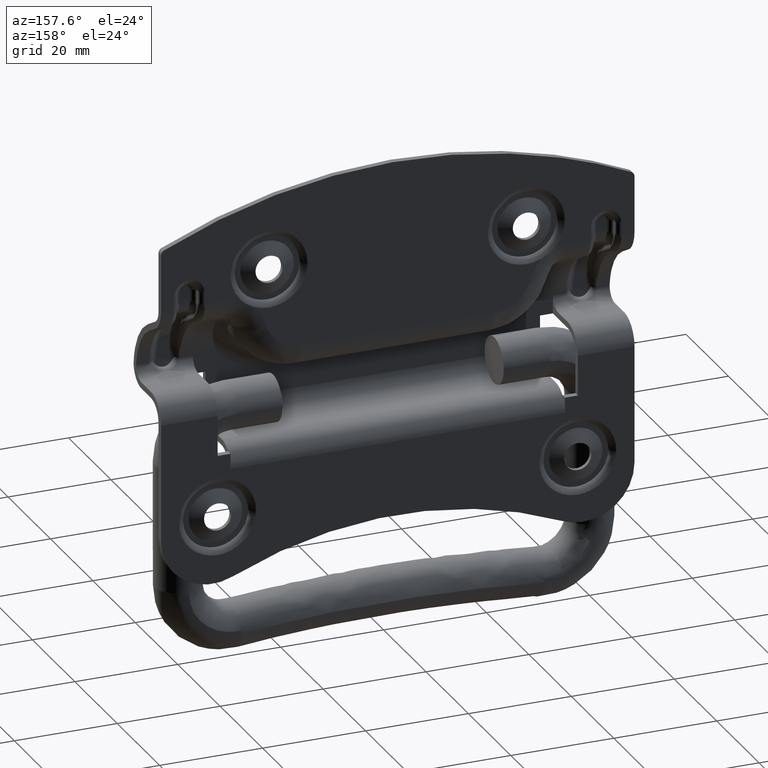
[diagram: clean part render]
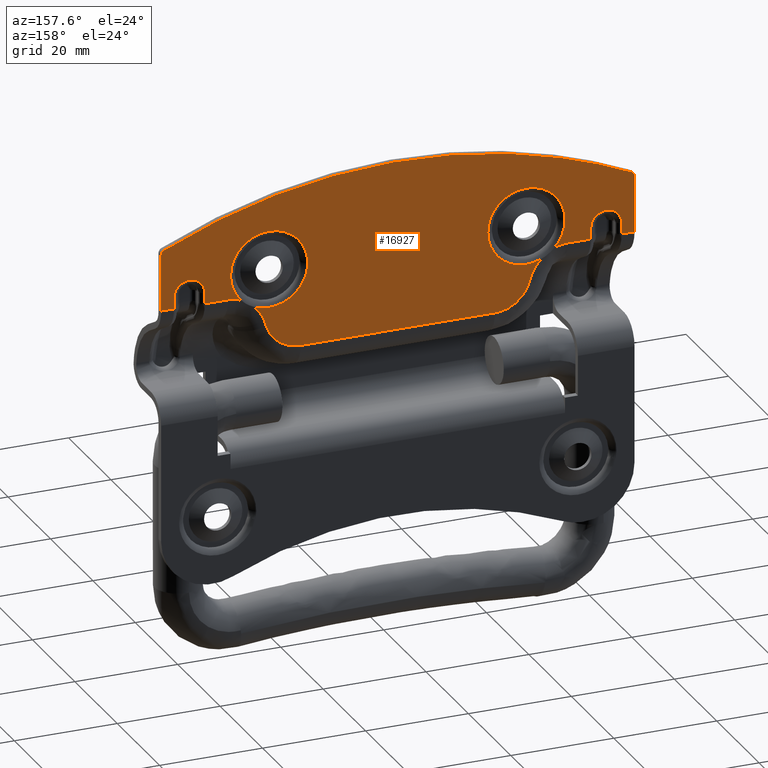
[diagram: same view with one face highlighted and labeled with its STEP entity id]
A machine part, auxiliary view. The second image highlights one B-rep face of the part: STEP entity #16927.
In plain terms, the highlighted face is a freeform B-spline surface patch.
Its self-contained STEP definition (entity closure, byte-faithful):
#4480=CARTESIAN_POINT('',(-17.599855428868469,6.699999999999859,29.719778737394659));
#4481=VERTEX_POINT('',#4480);
#4492=CARTESIAN_POINT('',(-27.859157721845101,6.699999999999720,21.566370566462801));
#4493=VERTEX_POINT('',#4492);
#4494=CARTESIAN_POINT('',(-27.859157721845101,6.699999999999720,21.566370566462801));
#4495=CARTESIAN_POINT('',(-27.360322011655089,6.699999999999748,21.360631809573341));
#4496=CARTESIAN_POINT('',(-26.157671341375309,6.699999999999797,21.010523444015199));
#4497=CARTESIAN_POINT('',(-24.272166708710881,6.699999999999889,20.946008092928110));
#4498=CARTESIAN_POINT('',(-22.643541879350689,6.699999999999905,21.330209056287480));
#4499=CARTESIAN_POINT('',(-21.391432594486190,6.700000000000029,21.893185835677158));
#4500=CARTESIAN_POINT('',(-20.305661637399119,6.699999999999835,22.591983571141569));
#4501=CARTESIAN_POINT('',(-19.128452021655619,6.700000000000098,23.716992021070620));
#4502=CARTESIAN_POINT('',(-18.296017919010321,6.699999999999943,25.023783359889428));
#4503=CARTESIAN_POINT('',(-17.757431780009529,6.699999999999949,26.421282093426189));
#4504=CARTESIAN_POINT('',(-17.456184346751701,6.699999999999969,27.892508938613840));
#4505=CARTESIAN_POINT('',(-17.491627361475011,6.699999999999839,29.064504485231851));
#4506=CARTESIAN_POINT('',(-17.599855428868469,6.699999999999859,29.719778737394659));
#4507=B_SPLINE_CURVE_WITH_KNOTS('',3,(#4494,#4495,#4496,#4497,#4498,#4499,#4500,#4501,#4502,#4503,#4504,#4505,#4506),.UNSPECIFIED.,.F.,.U.,(4,1,1,1,1,1,1,1,1,1,4),(0.000000144403227,1.618828214181859,3.735874904985225,5.603850837599225,6.600082343000436,7.845364331173047,9.464215657044326,11.456695585231399,12.452932399126800,13.947328080823439,15.939751955367260),.UNSPECIFIED.);
#4508=EDGE_CURVE('',#4493,#4481,#4507,.T.);
#4510=CARTESIAN_POINT('',(-30.442221614936599,6.700000000000000,23.339358189729001));
#4511=VERTEX_POINT('',#4510);
#4520=CARTESIAN_POINT('',(-30.227261241813601,6.700000000000000,33.878265511280880));
#4521=VERTEX_POINT('',#4520);
#4522=CARTESIAN_POINT('',(-30.227261241813601,6.700000000000000,33.878265511280880));
#4523=CARTESIAN_POINT('',(-30.576537936198591,6.700000000000004,33.538864588067831));
#4524=CARTESIAN_POINT('',(-31.208609928645529,6.700000000000019,32.791686823680372));
#4525=CARTESIAN_POINT('',(-32.026242869040551,6.700000000000020,31.321600236154719));
#4526=CARTESIAN_POINT('',(-32.485313480000151,6.700000000000057,29.662645540777469));
#4527=CARTESIAN_POINT('',(-32.536354236661090,6.700000000000039,27.735258594556331));
#4528=CARTESIAN_POINT('',(-32.165765403128503,6.700000000000036,26.054337421765549));
#4529=CARTESIAN_POINT('',(-31.413672857445210,6.699999999999998,24.515533807658912));
#4530=CARTESIAN_POINT('',(-30.798338427640878,6.700000000000002,23.714790264506210));
#4531=CARTESIAN_POINT('',(-30.442221614936599,6.700000000000000,23.339358189729001));
#4532=B_SPLINE_CURVE_WITH_KNOTS('',3,(#4522,#4523,#4524,#4525,#4526,#4527,#4528,#4529,#4530,#4531),.UNSPECIFIED.,.F.,.U.,(4,1,1,1,1,1,1,4),(0.000000170349656,1.461057590551784,2.922174182969343,5.022497032051713,6.574848624951004,8.675201047354914,10.136311972386819,11.688694012835169),.UNSPECIFIED.);
#4533=EDGE_CURVE('',#4521,#4511,#4532,.T.);
#4535=CARTESIAN_POINT('',(-19.686393561458079,6.699999999999859,33.792975213646777));
#4536=VERTEX_POINT('',#4535);
#4537=CARTESIAN_POINT('',(-19.686393561458079,6.699999999999859,33.792975213646777));
#4538=CARTESIAN_POINT('',(-20.223211818278511,6.699999999999847,34.332420803422217));
#4539=CARTESIAN_POINT('',(-21.239861120630302,6.699999999999903,35.080927160409082));
#4540=CARTESIAN_POINT('',(-22.798577886276519,6.699999999999881,35.713428094965948));
#4541=CARTESIAN_POINT('',(-24.234915229605960,6.699999999999941,36.008964288599898));
#4542=CARTESIAN_POINT('',(-25.612861836513659,6.699999999999925,36.020135690317780));
#4543=CARTESIAN_POINT('',(-26.964553134051851,6.699999999999962,35.773154837603748));
#4544=CARTESIAN_POINT('',(-28.545985466058429,6.699999999999958,35.205169171294123));
#4545=CARTESIAN_POINT('',(-29.616374572467631,6.700000000000017,34.472722554203372));
#4546=CARTESIAN_POINT('',(-30.227261241813601,6.700000000000000,33.878265511280880));
#4547=B_SPLINE_CURVE_WITH_KNOTS('',3,(#4537,#4538,#4539,#4540,#4541,#4542,#4543,#4544,#4545,#4546),.UNSPECIFIED.,.F.,.U.,(4,1,1,1,1,1,1,4),(0.000000170372232,2.282972505763624,3.744102239475631,5.022565514238776,6.666298828322905,7.853428092450624,9.131924479666989,11.688853387539909),.UNSPECIFIED.);
#4548=EDGE_CURVE('',#4536,#4521,#4547,.T.);
#4590=CARTESIAN_POINT('',(-17.599855428868469,6.699999999999859,29.719778737394659));
#4591=CARTESIAN_POINT('',(-17.694291230821669,6.699999999999889,30.293406727546792));
#4592=CARTESIAN_POINT('',(-17.963704653203699,6.699999999999946,31.230893748027800));
#4593=CARTESIAN_POINT('',(-18.672623134032548,6.699999999999910,32.614784581168983));
#4594=CARTESIAN_POINT('',(-19.276027804433848,6.699999999999918,33.381190892038497));
#4595=CARTESIAN_POINT('',(-19.686393561458079,6.699999999999859,33.792975213646777));
#4596=B_SPLINE_CURVE_WITH_KNOTS('',3,(#4590,#4591,#4592,#4593,#4594,#4595),.UNSPECIFIED.,.F.,.U.,(4,1,1,4),(0.000000023372207,1.744019462370837,2.906675351270086,4.650694790267514),.UNSPECIFIED.);
#4597=EDGE_CURVE('',#4481,#4536,#4596,.T.);
#4902=CARTESIAN_POINT('',(32.400144577657727,6.699999999999836,29.719778738156322));
#4903=VERTEX_POINT('',#4902);
#4914=CARTESIAN_POINT('',(30.442243711970399,6.699999999999720,23.339381492541900));
#4915=VERTEX_POINT('',#4914);
#4916=CARTESIAN_POINT('',(30.442243711970399,6.699999999999720,23.339381492541900));
#4917=CARTESIAN_POINT('',(31.012729285083338,6.699999999999767,23.940334725759531));
#4918=CARTESIAN_POINT('',(31.726576211102451,6.699999999999779,25.000514157920751));
#4919=CARTESIAN_POINT('',(32.246215813741060,6.699999999999839,26.465979307134241));
#4920=CARTESIAN_POINT('',(32.535754669270318,6.699999999999837,27.916807352750340));
#4921=CARTESIAN_POINT('',(32.523558819182227,6.699999999999841,28.973353938789479));
#4922=CARTESIAN_POINT('',(32.400144577657727,6.699999999999836,29.719778738156322));
#4923=B_SPLINE_CURVE_WITH_KNOTS('',3,(#4916,#4917,#4918,#4919,#4920,#4921,#4922),.UNSPECIFIED.,.F.,.U.,(4,1,1,1,4),(0.000000057421215,2.485659334540035,3.782491075978940,4.647082522637892,6.916604693671566),.UNSPECIFIED.);
#4924=EDGE_CURVE('',#4915,#4903,#4923,.T.);
#4926=CARTESIAN_POINT('',(27.859068966373449,6.700000000000000,21.566333967840649));
#4927=VERTEX_POINT('',#4926);
#4936=CARTESIAN_POINT('',(17.646709662147479,6.699999999999999,29.976184679247400));
#4937=VERTEX_POINT('',#4936);
#4938=CARTESIAN_POINT('',(17.646709662147479,6.699999999999999,29.976184679247400));
#4939=CARTESIAN_POINT('',(17.513655399809810,6.700000000000011,29.314415719801140));
#4940=CARTESIAN_POINT('',(17.430717735093548,6.700000000000038,27.997273832698230));
#4941=CARTESIAN_POINT('',(17.807904082857618,6.700000000000072,26.121061805612619));
#4942=CARTESIAN_POINT('',(18.536675211569420,6.700000000000066,24.585904518885339));
#4943=CARTESIAN_POINT('',(19.439005625404480,6.700000000000070,23.409062771299428));
#4944=CARTESIAN_POINT('',(20.346086638651570,6.700000000000074,22.581635327030341));
#4945=CARTESIAN_POINT('',(21.331404104708920,6.700000000000041,21.925256208034750));
#4946=CARTESIAN_POINT('',(22.367690411477710,6.700000000000165,21.442702215952551));
#4947=CARTESIAN_POINT('',(23.670585659619679,6.699999999999934,21.074372117776829));
#4948=CARTESIAN_POINT('',(24.938701854076371,6.700000000000073,20.960163857052859));
#4949=CARTESIAN_POINT('',(26.413032717186571,6.700000000000076,21.089287707311929));
#4950=CARTESIAN_POINT('',(27.313074084678210,6.699999999999968,21.341069250886079));
#4951=CARTESIAN_POINT('',(27.859068966373449,6.700000000000000,21.566333967840649));
#4952=B_SPLINE_CURVE_WITH_KNOTS('',3,(#4938,#4939,#4940,#4941,#4942,#4943,#4944,#4945,#4946,#4947,#4948,#4949,#4950,#4951),.UNSPECIFIED.,.F.,.U.,(4,1,1,1,1,1,1,1,1,1,1,4),(0.000000121347497,2.024998801407255,3.923516485444116,5.695463858836543,7.087708065103147,8.353265406008379,9.365762727162242,10.631434803203421,11.770544444445690,13.415912213167701,14.428427323736861,16.200329934772991),.UNSPECIFIED.);
#4953=EDGE_CURVE('',#4937,#4927,#4952,.T.);
#4955=CARTESIAN_POINT('',(30.313606431949552,6.699999999999859,33.792975209025407));
#4956=VERTEX_POINT('',#4955);
#4957=CARTESIAN_POINT('',(30.313606431949552,6.699999999999859,33.792975209025407));
#4958=CARTESIAN_POINT('',(30.015890429225060,6.699999999999867,34.091883179872973));
#4959=CARTESIAN_POINT('',(29.305267548475030,6.699999999999865,34.694050501164533));
#4960=CARTESIAN_POINT('',(28.162761844590861,6.699999999999878,35.344166886596142));
#4961=CARTESIAN_POINT('',(26.686999519428682,6.699999999999876,35.866592633866397));
#4962=CARTESIAN_POINT('',(24.998254307521851,6.699999999999958,36.086130568375999));
#4963=CARTESIAN_POINT('',(23.185611825129509,6.699999999999864,35.844644032161682));
#4964=CARTESIAN_POINT('',(21.518865870258491,6.699999999999890,35.216937082350768));
#4965=CARTESIAN_POINT('',(20.209652337255640,6.700000000000175,34.344210435630167));
#4966=CARTESIAN_POINT('',(19.087519934210210,6.699999999999831,33.191175804624081));
#4967=CARTESIAN_POINT('',(18.183392103077111,6.699999999999934,31.804675313348611));
#4968=CARTESIAN_POINT('',(17.779356248158880,6.700000000000209,30.638035915425888));
#4969=CARTESIAN_POINT('',(17.646709662147479,6.699999999999999,29.976184679247400));
#4970=B_SPLINE_CURVE_WITH_KNOTS('',3,(#4957,#4958,#4959,#4960,#4961,#4962,#4963,#4964,#4965,#4966,#4967,#4968,#4969),.UNSPECIFIED.,.F.,.U.,(4,1,1,1,1,1,1,1,1,1,4),(0.000000121358731,1.265650540931576,2.784415849806873,3.923522161164160,5.948593406849312,7.847070779384904,9.365776275358476,11.264294571443820,12.529968621919350,14.175342593331390,16.200353370000482),.UNSPECIFIED.);
#4971=EDGE_CURVE('',#4956,#4937,#4970,.T.);
#5013=CARTESIAN_POINT('',(32.400144577657727,6.699999999999836,29.719778738156322));
#5014=CARTESIAN_POINT('',(32.278372578273348,6.699999999999927,30.460783787019679));
#5015=CARTESIAN_POINT('',(31.794144931458838,6.700000000000046,31.951837520804130));
#5016=CARTESIAN_POINT('',(30.878096061243770,6.699999999999930,33.226967781208700));
#5017=CARTESIAN_POINT('',(30.313606431949552,6.699999999999859,33.792975209025407));
#5018=B_SPLINE_CURVE_WITH_KNOTS('',3,(#5013,#5014,#5015,#5016,#5017),.UNSPECIFIED.,.F.,.U.,(4,1,4),(0.000000023375017,2.252702822897335,4.650694792973183),.UNSPECIFIED.);
#5019=EDGE_CURVE('',#4903,#4956,#5018,.T.);
#5633=CARTESIAN_POINT('',(45.412847142036100,6.700000000000000,35.688200327905349));
#5634=VERTEX_POINT('',#5633);
#5640=CARTESIAN_POINT('',(-45.413430709133799,6.700000000000000,35.688043712758301));
#5641=VERTEX_POINT('',#5640);
#5642=CARTESIAN_POINT('',(45.412847142036100,6.700000000000000,35.688200327905349));
#5643=CARTESIAN_POINT('',(40.194306759742332,6.699999999999974,38.054122291389298));
#5644=CARTESIAN_POINT('',(32.720704395817677,6.700000000000030,40.759885919085377));
#5645=CARTESIAN_POINT('',(21.108965034063878,6.699999999999986,43.593907695625347));
#5646=CARTESIAN_POINT('',(12.423074920043010,6.699999999999981,44.947574044855301));
#5647=CARTESIAN_POINT('',(1.954435342727233,6.700000000000036,45.627235232019181));
#5648=CARTESIAN_POINT('',(-7.199274337816347,6.699999999999986,45.414132537162359));
#5649=CARTESIAN_POINT('',(-17.502382810161741,6.699999999999951,44.244369056944947));
#5650=CARTESIAN_POINT('',(-30.061606942080470,6.700000000000070,41.683682362392211));
#5651=CARTESIAN_POINT('',(-39.639756778791117,6.699999999999950,38.305731042738053));
#5652=CARTESIAN_POINT('',(-45.413430709133799,6.700000000000000,35.688043712758301));
#5653=B_SPLINE_CURVE_WITH_KNOTS('',3,(#5642,#5643,#5644,#5645,#5646,#5647,#5648,#5649,#5650,#5651,#5652),.UNSPECIFIED.,.F.,.U.,(4,1,1,1,1,1,1,1,4),(0.000000014710807,17.189339467061160,23.772504426845771,35.841635796459379,43.521979101027192,55.225332009972092,63.271424679075778,74.609089818505126,93.627091931283061),.UNSPECIFIED.);
#5654=EDGE_CURVE('',#5634,#5641,#5653,.T.);
#5696=CARTESIAN_POINT('',(46.0,6.700000000000000,34.777400000000000));
#5697=VERTEX_POINT('',#5696);
#5703=CARTESIAN_POINT('',(46.0,6.700000000000000,34.777400000000000));
#5704=CARTESIAN_POINT('',(46.000136862794953,6.700000000000006,34.908646347947638));
#5705=CARTESIAN_POINT('',(45.954713477499432,6.699999999999998,35.135190445052253));
#5706=CARTESIAN_POINT('',(45.757501502694637,6.700000000000006,35.466658394656868));
#5707=CARTESIAN_POINT('',(45.554255199775703,6.700000000000005,35.624389287485023));
#5708=CARTESIAN_POINT('',(45.412847142036100,6.700000000000000,35.688200327905349));
#5709=B_SPLINE_CURVE_WITH_KNOTS('',3,(#5703,#5704,#5705,#5706,#5707,#5708),.UNSPECIFIED.,.F.,.U.,(4,1,1,4),(0.000000285971938,0.393708041685748,0.680001799287294,1.145279577877938),.UNSPECIFIED.);
#5710=EDGE_CURVE('',#5697,#5634,#5709,.T.);
#5740=CARTESIAN_POINT('',(-46.000500000000002,6.700000000000000,34.777400000000000));
#5741=VERTEX_POINT('',#5740);
#5742=CARTESIAN_POINT('',(-45.413430709133799,6.700000000000000,35.688043712758301));
#5743=CARTESIAN_POINT('',(-45.532998655047372,6.700000000000000,35.633982889480748));
#5744=CARTESIAN_POINT('',(-45.750260266463933,6.699999999999998,35.477876266394667));
#5745=CARTESIAN_POINT('',(-45.955212033576082,6.700000000000017,35.147135777531403));
#5746=CARTESIAN_POINT('',(-46.000571281730771,6.699999999999977,34.896677366694611));
#5747=CARTESIAN_POINT('',(-46.000500000000002,6.700000000000000,34.777400000000000));
#5748=B_SPLINE_CURVE_WITH_KNOTS('',3,(#5742,#5743,#5744,#5745,#5746,#5747),.UNSPECIFIED.,.F.,.U.,(4,1,1,4),(0.000000285892713,0.393642477896029,0.787243907968191,1.145088858863609),.UNSPECIFIED.);
#5749=EDGE_CURVE('',#5641,#5741,#5748,.T.);
#9154=CARTESIAN_POINT('',(43.499749999999999,6.700000000000000,23.855556603696702));
#9155=VERTEX_POINT('',#9154);
#9373=CARTESIAN_POINT('',(37.499749999999999,6.700000000000000,23.855556603696702));
#9374=VERTEX_POINT('',#9373);
#9670=CARTESIAN_POINT('',(-37.500749999999996,6.700000000000000,23.855556603696702));
#9671=VERTEX_POINT('',#9670);
#10107=CARTESIAN_POINT('',(-43.500749999999996,6.700000000000000,23.855556603696702));
#10108=VERTEX_POINT('',#10107);
#10462=CARTESIAN_POINT('',(-37.500749999999996,6.700000000000000,26.0));
#10463=VERTEX_POINT('',#10462);
#10464=CARTESIAN_POINT('',(-37.500749999999996,6.700000000000000,23.855556603696702));
#10465=CARTESIAN_POINT('',(-37.500749999999996,6.700000000000000,26.0));
#10466=QUASI_UNIFORM_CURVE('',1,(#10464,#10465),.UNSPECIFIED.,.F.,.U.);
#10467=EDGE_CURVE('',#9671,#10463,#10466,.T.);
#10515=CARTESIAN_POINT('',(-43.500749999999996,6.700000000000000,26.0));
#10516=VERTEX_POINT('',#10515);
#10527=CARTESIAN_POINT('',(-40.500753221776833,6.699999999999999,28.999999999998270));
#10528=VERTEX_POINT('',#10527);
#10529=CARTESIAN_POINT('',(-40.500753221776833,6.699999999999999,28.999999999998270));
#10530=CARTESIAN_POINT('',(-40.746189353065880,6.699999999999998,29.000064056054178));
#10531=CARTESIAN_POINT('',(-41.187931288121689,6.700000000000001,28.945449107539229));
#10532=CARTESIAN_POINT('',(-41.907859607631622,6.700000000000002,28.688024696617560));
#10533=CARTESIAN_POINT('',(-42.625364544750582,6.699999999999992,28.195946224019551));
#10534=CARTESIAN_POINT('',(-43.144609892632573,6.700000000000022,27.495665638531730));
#10535=CARTESIAN_POINT('',(-43.437323205624210,6.699999999999950,26.736243432026310));
#10536=CARTESIAN_POINT('',(-43.500852187186588,6.700000000000070,26.269990095391599));
#10537=CARTESIAN_POINT('',(-43.500749999999996,6.700000000000000,26.0));
#10538=B_SPLINE_CURVE_WITH_KNOTS('',3,(#10529,#10530,#10531,#10532,#10533,#10534,#10535,#10536,#10537),.UNSPECIFIED.,.F.,.U.,(4,1,1,1,1,1,4),(0.000000211843044,0.736311563974538,1.325394493121019,2.282645086977906,3.313480242705597,3.902560987525169,4.712505417121879),.UNSPECIFIED.);
#10539=EDGE_CURVE('',#10528,#10516,#10538,.T.);
#10541=CARTESIAN_POINT('',(-37.500749999999996,6.700000000000000,26.0));
#10542=CARTESIAN_POINT('',(-37.500612580911167,6.699999999999992,26.294543237178189));
#10543=CARTESIAN_POINT('',(-37.573659160025471,6.700000000000017,26.785329995892599));
#10544=CARTESIAN_POINT('',(-37.866226006825350,6.699999999999986,27.491684473068162));
#10545=CARTESIAN_POINT('',(-38.344887289882202,6.700000000000009,28.154257261139080));
#10546=CARTESIAN_POINT('',(-39.005063105399230,6.699999999999981,28.643869681004059));
#10547=CARTESIAN_POINT('',(-39.764506480613328,6.700000000000038,28.936589076205269));
#10548=CARTESIAN_POINT('',(-40.230770166445033,6.699999999999927,29.000081305287200));
#10549=CARTESIAN_POINT('',(-40.500753221776833,6.699999999999999,28.999999999998270));
#10550=B_SPLINE_CURVE_WITH_KNOTS('',3,(#10541,#10542,#10543,#10544,#10545,#10546,#10547,#10548,#10549),.UNSPECIFIED.,.F.,.U.,(4,1,1,1,1,1,4),(0.000000207430602,0.883595123887533,1.472672153806683,2.282646837669791,3.313482796865293,3.902563997235837,4.712509048905859),.UNSPECIFIED.);
#10551=EDGE_CURVE('',#10463,#10528,#10550,.T.);
#10602=CARTESIAN_POINT('',(-43.500749999999996,6.700000000000000,26.0));
#10603=CARTESIAN_POINT('',(-43.500749999999996,6.700000000000000,23.855556603696702));
#10604=QUASI_UNIFORM_CURVE('',1,(#10602,#10603),.UNSPECIFIED.,.F.,.U.);
#10605=EDGE_CURVE('',#10516,#10108,#10604,.T.);
#10633=CARTESIAN_POINT('',(37.499749999999999,6.700000000000000,26.0));
#10634=VERTEX_POINT('',#10633);
#10635=CARTESIAN_POINT('',(37.499749999999999,6.700000000000000,26.0));
#10636=CARTESIAN_POINT('',(37.499749999999999,6.700000000000000,23.855556603696702));
#10637=QUASI_UNIFORM_CURVE('',1,(#10635,#10636),.UNSPECIFIED.,.F.,.U.);
#10638=EDGE_CURVE('',#10634,#9374,#10637,.T.);
#10676=CARTESIAN_POINT('',(43.499749999999999,6.700000000000000,26.0));
#10677=VERTEX_POINT('',#10676);
#10714=CARTESIAN_POINT('',(40.499746778223177,6.700000000000001,28.999999999998270));
#10715=VERTEX_POINT('',#10714);
#10716=CARTESIAN_POINT('',(40.499746778223177,6.700000000000001,28.999999999998270));
#10717=CARTESIAN_POINT('',(40.205217623385863,6.700000000000009,29.000101188575869));
#10718=CARTESIAN_POINT('',(39.591672447961741,6.699999999999987,28.908959384915580));
#10719=CARTESIAN_POINT('',(38.720326145524567,6.700000000000015,28.483953049738531));
#10720=CARTESIAN_POINT('',(38.104035220846768,6.699999999999993,27.867398508079042));
#10721=CARTESIAN_POINT('',(37.629888612856242,6.700000000000013,27.030465073744988));
#10722=CARTESIAN_POINT('',(37.499215861606473,6.700000000000022,26.417349437127729));
#10723=CARTESIAN_POINT('',(37.499749999999999,6.700000000000000,26.0));
#10724=B_SPLINE_CURVE_WITH_KNOTS('',3,(#10716,#10717,#10718,#10719,#10720,#10721,#10722,#10723),.UNSPECIFIED.,.F.,.U.,(4,1,1,1,1,4),(0.000000211838501,0.883594447142713,1.840828444091986,2.871678888009475,3.460742142525902,4.712505417121858),.UNSPECIFIED.);
#10725=EDGE_CURVE('',#10715,#10634,#10724,.T.);
#10727=CARTESIAN_POINT('',(43.499749999999999,6.700000000000000,26.0));
#10728=CARTESIAN_POINT('',(43.500198244091543,6.700000000000005,26.392794009980790));
#10729=CARTESIAN_POINT('',(43.387242255922622,6.699999999999993,26.956921126069791));
#10730=CARTESIAN_POINT('',(42.990123734984628,6.700000000000006,27.722264927275539));
#10731=CARTESIAN_POINT('',(42.455518708282362,6.699999999999984,28.342415760788640));
#10732=CARTESIAN_POINT('',(41.579498645101751,6.700000000000022,28.867328944938610));
#10733=CARTESIAN_POINT('',(40.867946349466933,6.699999999999989,29.000315880530142));
#10734=CARTESIAN_POINT('',(40.499746778223177,6.700000000000001,28.999999999998270));
#10735=B_SPLINE_CURVE_WITH_KNOTS('',3,(#10727,#10728,#10729,#10730,#10731,#10732,#10733,#10734),.UNSPECIFIED.,.F.,.U.,(4,1,1,1,1,4),(0.000000207422199,1.178128781644729,1.693580311910375,2.577104465568914,3.608018890868530,4.712509048905936),.UNSPECIFIED.);
#10736=EDGE_CURVE('',#10677,#10715,#10735,.T.);
#10755=CARTESIAN_POINT('',(43.499749999999999,6.700000000000000,23.855556603696702));
#10756=CARTESIAN_POINT('',(43.499749999999999,6.700000000000000,26.0));
#10757=QUASI_UNIFORM_CURVE('',1,(#10755,#10756),.UNSPECIFIED.,.F.,.U.);
#10758=EDGE_CURVE('',#9155,#10677,#10757,.T.);
#11999=CARTESIAN_POINT('',(-46.000500000000002,6.700000000000000,23.855556603696702));
#12000=VERTEX_POINT('',#11999);
#12001=CARTESIAN_POINT('',(-43.500749999999996,6.700000000000000,23.855556603696702));
#12002=CARTESIAN_POINT('',(-46.000500000000002,6.700000000000000,23.855556603696702));
#12003=QUASI_UNIFORM_CURVE('',1,(#12001,#12002),.UNSPECIFIED.,.F.,.U.);
#12004=EDGE_CURVE('',#10108,#12000,#12003,.T.);
#12050=CARTESIAN_POINT('',(46.0,6.700000000000000,23.855556603696702));
#12051=VERTEX_POINT('',#12050);
#12052=CARTESIAN_POINT('',(46.0,6.700000000000000,23.855556603696702));
#12053=CARTESIAN_POINT('',(43.499749999999999,6.700000000000000,23.855556603696702));
#12054=QUASI_UNIFORM_CURVE('',1,(#12052,#12053),.UNSPECIFIED.,.F.,.U.);
#12055=EDGE_CURVE('',#12051,#9155,#12054,.T.);
#12087=CARTESIAN_POINT('',(-18.875717261655250,6.700000000000000,12.500000000000000));
#12088=VERTEX_POINT('',#12087);
#12119=CARTESIAN_POINT('',(-25.566193525630901,6.700000000000000,17.441474469145749));
#12120=VERTEX_POINT('',#12119);
#12134=CARTESIAN_POINT('',(-18.875717261655250,6.700000000000000,12.500000000000000));
#12135=CARTESIAN_POINT('',(-19.501957548395929,6.700000000000006,12.499804966210050));
#12136=CARTESIAN_POINT('',(-20.452745029526159,6.700000000000002,12.628491198692339));
#12137=CARTESIAN_POINT('',(-21.812681862523171,6.699999999999988,13.106465405317421));
#12138=CARTESIAN_POINT('',(-23.032586952328408,6.700000000000023,13.791712725650971));
#12139=CARTESIAN_POINT('',(-24.136664079643989,6.700000000000000,14.800955464989951));
#12140=CARTESIAN_POINT('',(-25.025279735669098,6.699999999999990,16.054914715290469));
#12141=CARTESIAN_POINT('',(-25.409413444607271,6.699999999999995,16.931588307321320));
#12142=CARTESIAN_POINT('',(-25.566193525630901,6.700000000000000,17.441474469145749));
#12143=B_SPLINE_CURVE_WITH_KNOTS('',3,(#12134,#12135,#12136,#12137,#12138,#12139,#12140,#12141,#12142),.UNSPECIFIED.,.F.,.U.,(4,1,1,1,1,1,4),(0.000000104900050,1.878647072288070,2.852769895313346,4.313948543079624,6.053425047975685,7.305871002398871,8.906197329415004),.UNSPECIFIED.);
#12144=EDGE_CURVE('',#12088,#12120,#12143,.T.);
#12165=CARTESIAN_POINT('',(-25.707338826518900,6.700000000000000,17.900215092571901));
#12166=VERTEX_POINT('',#12165);
#12179=CARTESIAN_POINT('',(-25.566193525630901,6.700000000000000,17.441474469145749));
#12180=CARTESIAN_POINT('',(-25.707338826518900,6.700000000000000,17.900215092571901));
#12181=QUASI_UNIFORM_CURVE('',1,(#12179,#12180),.UNSPECIFIED.,.F.,.U.);
#12182=EDGE_CURVE('',#12120,#12166,#12181,.T.);
#12207=CARTESIAN_POINT('',(18.875617259092451,6.700000000000000,12.500000000000000));
#12208=VERTEX_POINT('',#12207);
#12230=CARTESIAN_POINT('',(18.875617259092451,6.700000000000000,12.500000000000000));
#12231=CARTESIAN_POINT('',(-18.875717261655250,6.700000000000000,12.500000000000000));
#12232=QUASI_UNIFORM_CURVE('',1,(#12230,#12231),.UNSPECIFIED.,.F.,.U.);
#12233=EDGE_CURVE('',#12208,#12088,#12232,.T.);
#12288=CARTESIAN_POINT('',(-25.980507588356101,6.700000000000000,18.669709580631501));
#12289=VERTEX_POINT('',#12288);
#12303=CARTESIAN_POINT('',(-25.707338826518900,6.700000000000000,17.900215092571901));
#12304=CARTESIAN_POINT('',(-25.980507588356101,6.700000000000000,18.669709580631501));
#12305=QUASI_UNIFORM_CURVE('',1,(#12303,#12304),.UNSPECIFIED.,.F.,.U.);
#12306=EDGE_CURVE('',#12166,#12289,#12305,.T.);
#12334=CARTESIAN_POINT('',(25.566033194037800,6.700000000000000,17.441278402155952));
#12335=VERTEX_POINT('',#12334);
#12364=CARTESIAN_POINT('',(25.566033194037800,6.700000000000000,17.441278402155952));
#12365=CARTESIAN_POINT('',(25.416067079011992,6.699999999999982,16.953571514376559));
#12366=CARTESIAN_POINT('',(25.073484320617268,6.700000000000021,16.161216704873500));
#12367=CARTESIAN_POINT('',(24.230400117909099,6.700000000000016,14.906400831896420));
#12368=CARTESIAN_POINT('',(23.183447633682469,6.699999999999938,13.900527591407350));
#12369=CARTESIAN_POINT('',(21.938358229046170,6.700000000000020,13.168345666353050));
#12370=CARTESIAN_POINT('',(20.568536447341710,6.699999999999960,12.648287783363340));
#12371=CARTESIAN_POINT('',(19.548244300051120,6.700000000000031,12.499691793833650));
#12372=CARTESIAN_POINT('',(18.875617259092451,6.700000000000000,12.500000000000000));
#12373=B_SPLINE_CURVE_WITH_KNOTS('',3,(#12364,#12365,#12366,#12367,#12368,#12369,#12370,#12371,#12372),.UNSPECIFIED.,.F.,.U.,(4,1,1,1,1,1,4),(0.000000104893598,1.530704739715540,2.574388883646048,4.522525278663510,5.844539489776043,6.888229189832332,8.905992188254432),.UNSPECIFIED.);
#12374=EDGE_CURVE('',#12335,#12208,#12373,.T.);
#12393=CARTESIAN_POINT('',(25.707313875708401,6.700000000000000,17.900411159561749));
#12394=VERTEX_POINT('',#12393);
#12417=CARTESIAN_POINT('',(25.707313875708401,6.700000000000000,17.900411159561749));
#12418=CARTESIAN_POINT('',(25.566033194037800,6.700000000000000,17.441278402155952));
#12419=QUASI_UNIFORM_CURVE('',1,(#12417,#12418),.UNSPECIFIED.,.F.,.U.);
#12420=EDGE_CURVE('',#12394,#12335,#12419,.T.);
#12447=CARTESIAN_POINT('',(-32.980041530096400,6.700000000000000,23.855556603696702));
#12448=VERTEX_POINT('',#12447);
#12449=CARTESIAN_POINT('',(-32.980041530096400,6.700000000000000,23.855556603696702));
#12450=CARTESIAN_POINT('',(-37.500749999999996,6.700000000000000,23.855556603696702));
#12451=QUASI_UNIFORM_CURVE('',1,(#12449,#12450),.UNSPECIFIED.,.F.,.U.);
#12452=EDGE_CURVE('',#12448,#9671,#12451,.T.);
#12516=CARTESIAN_POINT('',(25.980503703339000,6.700000000000000,18.669894417957352));
#12517=VERTEX_POINT('',#12516);
#12539=CARTESIAN_POINT('',(25.980503703339000,6.700000000000000,18.669894417957352));
#12540=CARTESIAN_POINT('',(25.707313875708401,6.700000000000000,17.900411159561749));
#12541=QUASI_UNIFORM_CURVE('',1,(#12539,#12540),.UNSPECIFIED.,.F.,.U.);
#12542=EDGE_CURVE('',#12517,#12394,#12541,.T.);
#12561=CARTESIAN_POINT('',(32.980016955754252,6.700000000000000,23.855556603696652));
#12562=VERTEX_POINT('',#12561);
#12563=CARTESIAN_POINT('',(37.499749999999999,6.700000000000000,23.855556603696702));
#12564=CARTESIAN_POINT('',(32.980016955754252,6.700000000000000,23.855556603696652));
#12565=QUASI_UNIFORM_CURVE('',1,(#12563,#12564),.UNSPECIFIED.,.F.,.U.);
#12566=EDGE_CURVE('',#9374,#12562,#12565,.T.);
#16521=CARTESIAN_POINT('',(46.0,6.700000000000000,23.855556603696702));
#16522=CARTESIAN_POINT('',(46.0,6.700000000000000,34.777400000000000));
#16523=QUASI_UNIFORM_CURVE('',1,(#16521,#16522),.UNSPECIFIED.,.F.,.U.);
#16524=EDGE_CURVE('',#12051,#5697,#16523,.T.);
#16552=CARTESIAN_POINT('',(-46.000500000000002,6.700000000000000,23.855556603696702));
#16553=CARTESIAN_POINT('',(-46.000500000000002,6.700000000000000,34.777400000000000));
#16554=QUASI_UNIFORM_CURVE('',1,(#16552,#16553),.UNSPECIFIED.,.F.,.U.);
#16555=EDGE_CURVE('',#12000,#5741,#16554,.T.);
#16719=CARTESIAN_POINT('',(27.859068966373449,6.700000000000000,21.566333967840649));
#16720=CARTESIAN_POINT('',(27.053915412808490,6.700000000000006,20.734000573307728));
#16721=CARTESIAN_POINT('',(26.412034512901261,6.700000000000008,19.744548961566419));
#16722=CARTESIAN_POINT('',(25.980503703339000,6.700000000000000,18.669894417957352));
#16723=B_SPLINE_CURVE_WITH_KNOTS('',3,(#16719,#16720,#16721,#16722),.UNSPECIFIED.,.F.,.U.,(4,4),(8.765506E-009,3.473821350145279),.UNSPECIFIED.);
#16724=EDGE_CURVE('',#4927,#12517,#16723,.T.);
#16727=CARTESIAN_POINT('',(32.980016955754252,6.700000000000000,23.855556603696652));
#16728=CARTESIAN_POINT('',(32.111121643052613,6.699999999999989,23.852080177868380));
#16729=CARTESIAN_POINT('',(31.243504673093760,6.699999999999914,23.675397291645801));
#16730=CARTESIAN_POINT('',(30.442243711970399,6.699999999999720,23.339381492541900));
#16731=B_SPLINE_CURVE_WITH_KNOTS('',3,(#16727,#16728,#16729,#16730),.UNSPECIFIED.,.F.,.U.,(4,4),(0.000000011572153,2.606394496969721),.UNSPECIFIED.);
#16732=EDGE_CURVE('',#12562,#4915,#16731,.T.);
#16818=CARTESIAN_POINT('',(-30.442221614936599,6.700000000000000,23.339358189729001));
#16819=CARTESIAN_POINT('',(-31.243112564848008,6.700000000000022,23.676475792672161));
#16820=CARTESIAN_POINT('',(-32.111042666382332,6.699999999999968,23.853298948896761));
#16821=CARTESIAN_POINT('',(-32.980041530096400,6.700000000000000,23.855556603696702));
#16822=B_SPLINE_CURVE_WITH_KNOTS('',3,(#16818,#16819,#16820,#16821),.UNSPECIFIED.,.F.,.U.,(4,4),(0.000000011901519,2.606680054324406),.UNSPECIFIED.);
#16823=EDGE_CURVE('',#4511,#12448,#16822,.T.);
#16826=CARTESIAN_POINT('',(-25.980507588356101,6.700000000000000,18.669709580631501));
#16827=CARTESIAN_POINT('',(-26.155803659729472,6.700000000000014,19.106292627088880));
#16828=CARTESIAN_POINT('',(-26.671985783313460,6.699999999999942,20.146962414119258));
#16829=CARTESIAN_POINT('',(-27.380952440965149,6.699999999999845,21.072281620186509));
#16830=CARTESIAN_POINT('',(-27.859157721845101,6.699999999999720,21.566370566462801));
#16831=B_SPLINE_CURVE_WITH_KNOTS('',3,(#16826,#16827,#16828,#16829,#16830),.UNSPECIFIED.,.F.,.U.,(4,1,4),(8.880567E-009,1.411397939526852,3.474194642410808),.UNSPECIFIED.);
#16832=EDGE_CURVE('',#12289,#4493,#16831,.T.);
#16884=CARTESIAN_POINT('',(-50.595924796685182,6.700000000000000,47.148442109251413));
#16885=CARTESIAN_POINT('',(-50.595924796685182,6.700000000000000,10.851644793808410));
#16886=CARTESIAN_POINT('',(50.595427264330887,6.700000000000000,47.148442109251413));
#16887=CARTESIAN_POINT('',(50.595427264330887,6.700000000000000,10.851644793808410));
#16888=B_SPLINE_SURFACE_WITH_KNOTS('',1,1,((#16884,#16886),(#16885,#16887)),.UNSPECIFIED.,.F.,.F.,.U.,(2,2),(2,2),(0.0,36.296797315443001),(0.0,101.191352061016100),.UNSPECIFIED.);
#16889=ORIENTED_EDGE('',*,*,#4508,.T.);
#16890=ORIENTED_EDGE('',*,*,#4597,.T.);
#16891=ORIENTED_EDGE('',*,*,#4548,.T.);
#16892=ORIENTED_EDGE('',*,*,#4533,.T.);
#16893=ORIENTED_EDGE('',*,*,#16823,.T.);
#16894=ORIENTED_EDGE('',*,*,#12452,.T.);
#16895=ORIENTED_EDGE('',*,*,#10467,.T.);
#16896=ORIENTED_EDGE('',*,*,#10551,.T.);
#16897=ORIENTED_EDGE('',*,*,#10539,.T.);
#16898=ORIENTED_EDGE('',*,*,#10605,.T.);
#16899=ORIENTED_EDGE('',*,*,#12004,.T.);
#16900=ORIENTED_EDGE('',*,*,#16555,.T.);
#16901=ORIENTED_EDGE('',*,*,#5749,.F.);
#16902=ORIENTED_EDGE('',*,*,#5654,.F.);
#16903=ORIENTED_EDGE('',*,*,#5710,.F.);
#16904=ORIENTED_EDGE('',*,*,#16524,.F.);
#16905=ORIENTED_EDGE('',*,*,#12055,.T.);
#16906=ORIENTED_EDGE('',*,*,#10758,.T.);
#16907=ORIENTED_EDGE('',*,*,#10736,.T.);
#16908=ORIENTED_EDGE('',*,*,#10725,.T.);
#16909=ORIENTED_EDGE('',*,*,#10638,.T.);
#16910=ORIENTED_EDGE('',*,*,#12566,.T.);
#16911=ORIENTED_EDGE('',*,*,#16732,.T.);
#16912=ORIENTED_EDGE('',*,*,#4924,.T.);
#16913=ORIENTED_EDGE('',*,*,#5019,.T.);
#16914=ORIENTED_EDGE('',*,*,#4971,.T.);
#16915=ORIENTED_EDGE('',*,*,#4953,.T.);
#16916=ORIENTED_EDGE('',*,*,#16724,.T.);
#16917=ORIENTED_EDGE('',*,*,#12542,.T.);
#16918=ORIENTED_EDGE('',*,*,#12420,.T.);
#16919=ORIENTED_EDGE('',*,*,#12374,.T.);
#16920=ORIENTED_EDGE('',*,*,#12233,.T.);
#16921=ORIENTED_EDGE('',*,*,#12144,.T.);
#16922=ORIENTED_EDGE('',*,*,#12182,.T.);
#16923=ORIENTED_EDGE('',*,*,#12306,.T.);
#16924=ORIENTED_EDGE('',*,*,#16832,.T.);
#16925=EDGE_LOOP('',(#16889,#16890,#16891,#16892,#16893,#16894,#16895,#16896,#16897,#16898,#16899,#16900,#16901,#16902,#16903,#16904,#16905,#16906,#16907,#16908,#16909,#16910,#16911,#16912,#16913,#16914,#16915,#16916,#16917,#16918,#16919,#16920,#16921,#16922,#16923,#16924));
#16926=FACE_OUTER_BOUND('',#16925,.T.);
#16927=ADVANCED_FACE('',(#16926),#16888,.F.);